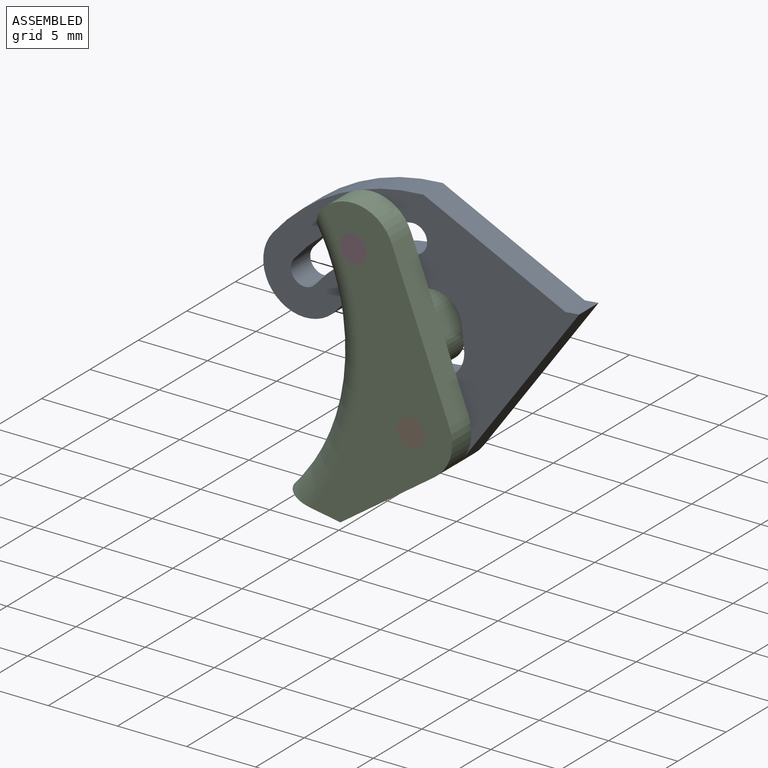
[diagram: assembled view]
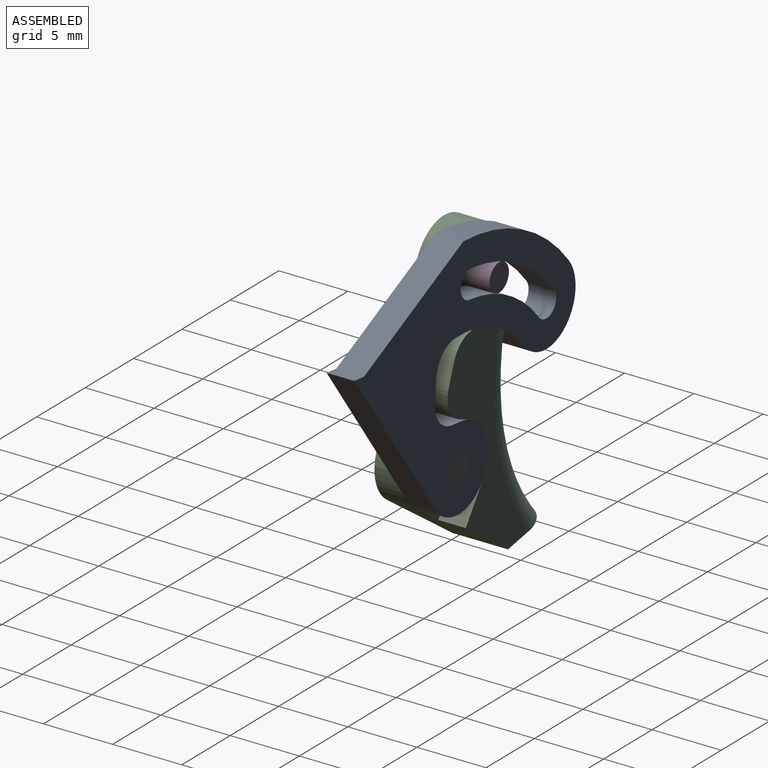
[diagram: assembled view, second angle]
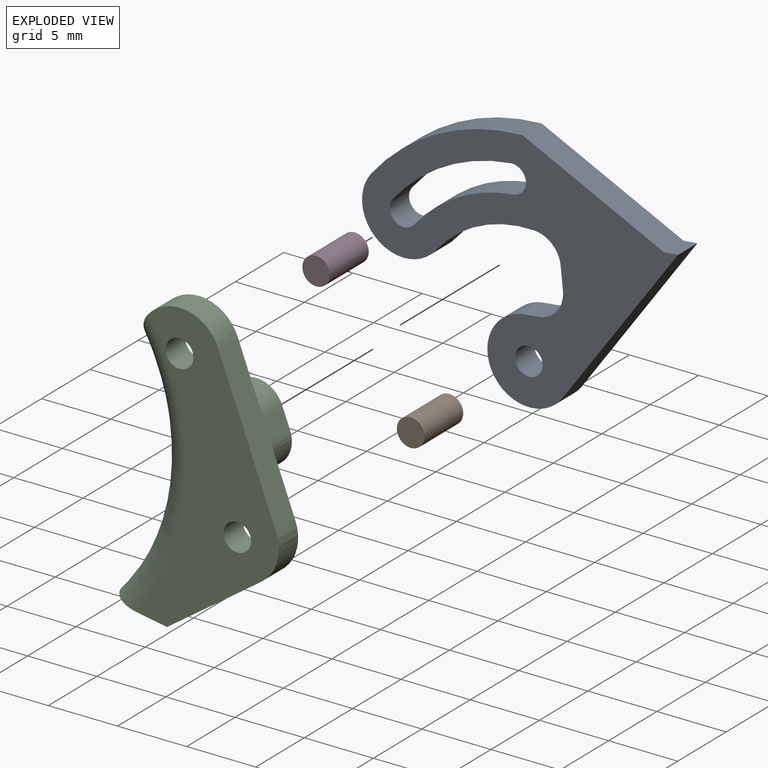
[diagram: exploded view]
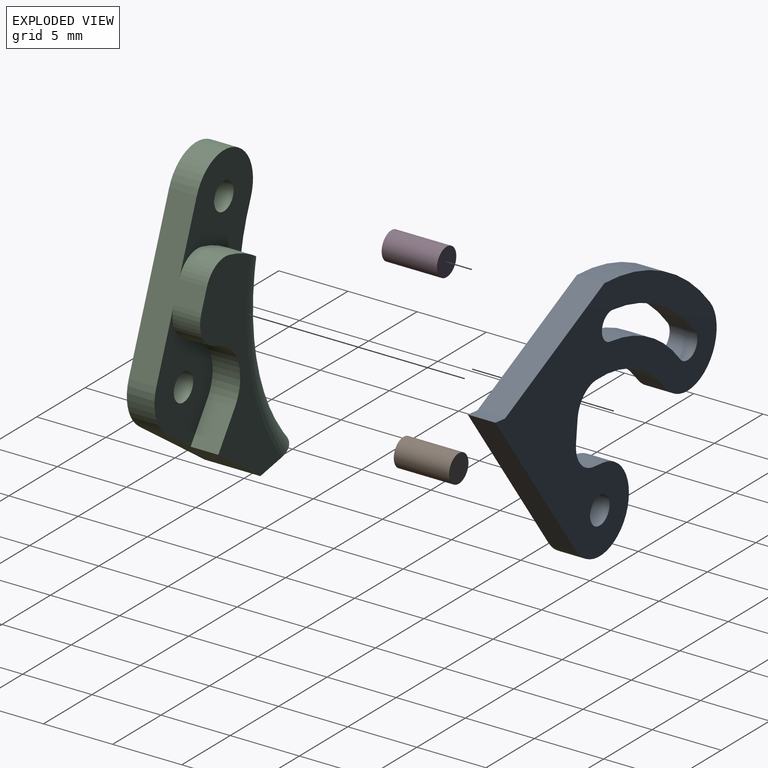
[diagram: exploded view, second angle]
ASSEMBLY  parts=4 mates=3
PART A: 18 faces, bbox 22.5x2x17.7 mm
  f0: cylinder r=1mm len=2mm, axis (0,1,0), area 6.3mm2, adj f1,f13,f14,f15
  f1: cylinder r=10.66mm len=8.07mm, axis (0,1,0), area 16.7mm2, adj f0,f2,f14,f15
  f2: cylinder r=1mm len=2mm, axis (0,1,0), area 6.3mm2, adj f1,f13,f14,f15
  f3: cylinder r=8.66mm len=7.8mm, axis (0,1,0), area 16.2mm2, adj f12,f14,f15,f16
  f4: plane 2x1.54mm, normal (-0.97,0,0.24), area 3.2mm2, adj f14,f15,f16,f17
  f5: plane 2x0.97mm, normal (0.24,0,0.97), area 2mm2, adj f6,f14,f15,f17
  f6: cylinder r=3mm len=6mm, axis (0,1,0), area 23.9mm2, adj f5,f7,f14,f15
  f7: plane 11.81x8.03mm, normal (0.56,0,-0.83), area 28.6mm2, adj f6,f8,f14,f15
  f8: plane 2x0.97mm, normal (0.24,0,0.97), area 2mm2, adj f7,f9,f14,f15
  f9: plane 8.14x7.96mm, normal (0.71,0,0.7), area 22.8mm2, adj f8,f10,f14,f15
  f10: cylinder r=14.66mm len=12.11mm, axis (0,1,0), area 25.1mm2, adj f9,f12,f14,f15
  f11: cylinder r=1mm len=2mm, axis (0,1,0), area 12.6mm2, adj f14,f15
  f12: cylinder r=3mm len=5.57mm, axis (0,1,0), area 18.8mm2, adj f3,f10,f14,f15
  f13: cylinder r=12.66mm len=9.59mm, axis (0,1,0), area 19.9mm2, adj f0,f2,f14,f15
  f14: plane 22.5x17.66mm, normal (0,-1,0), area 154.8mm2, adj f0,f1,f2,f3,f4,f5,f6,f7
  f15: plane 22.5x17.66mm, normal (0,1,0), area 154.8mm2, adj f0,f1,f2,f3,f4,f5,f6,f7
  f16: cylinder r=2mm len=2.33mm, axis (0,1,0), area 5.7mm2, adj f3,f4,f14,f15
  f17: cylinder r=2mm len=2.43mm, axis (0,1,0), area 6.3mm2, adj f4,f5,f14,f15
PART B: 3 faces, bbox 2x4x2 mm
  f0: cylinder r=1mm len=4mm, axis (0,1,0), area 25.1mm2, adj f1,f2
  f1: plane 2x2mm, normal (0,-1,0), area 3.1mm2, adj f0
  f2: plane 2x2mm, normal (0,1,0), area 3.1mm2, adj f0
PART C: 18 faces, bbox 13x4x24.2 mm
  f0: plane 10x6mm, normal (0.86,0,0.51), area 26.5mm2, adj f3,f6,f7,f8,f12,f14,f15,f16
  f1: cylinder r=1mm len=2mm, axis (0,1,0), area 12.6mm2, adj f8,f14
  f2: cylinder r=1mm len=2mm, axis (0,1,0), area 12.6mm2, adj f8,f12
  f3: plane 16.16x6.26mm, normal (0,1,0), area 49.4mm2, adj f0,f4,f5,f9,f10,f11,f13,f15
  f4: plane 4.53x4mm, normal (0,0,-1), area 16.1mm2, adj f3,f5,f8,f17
  f5: plane 5.88x5.87mm, normal (0.71,0,-0.71), area 27.2mm2, adj f3,f4,f6,f8,f11,f12
  f6: cylinder r=3mm len=3.66mm, axis (0,1,0), area 8mm2, adj f0,f5,f8,f12
  f7: cylinder r=3mm len=5.57mm, axis (0,1,0), area 16.6mm2, adj f0,f8,f14,f17
  f8: plane 21x11.53mm, normal (0,-1,0), area 99.6mm2, adj f0,f1,f2,f4,f5,f6,f7,f17
  f9: cylinder r=3mm len=4.7mm, axis (0,1,0), area 10.9mm2, adj f3,f10,f11,f12
  f10: plane 2x0.86mm, normal (0.51,0,-0.86), area 2mm2, adj f3,f9,f12,f15
  f11: plane 2.12x2.12mm, normal (0.71,0,0.71), area 6mm2, adj f3,f5,f9,f12
  f12: plane 10.07x6mm, normal (0,1,0), area 29.9mm2, adj f0,f2,f5,f6,f9,f10,f11,f15
  f13: cylinder r=8.66mm len=3.63mm, axis (0,1,0), area 8.3mm2, adj f3,f14,f16,f17
  f14: plane 8.18x7.79mm, normal (0,1,0), area 30.7mm2, adj f0,f1,f7,f13,f16,f17
  f15: cylinder r=2mm len=2.74mm, axis (0,-1,0), area 6.3mm2, adj f0,f3,f10,f12
  f16: cylinder r=2mm len=2.48mm, axis (0,1,0), area 5.7mm2, adj f0,f3,f13,f14
  f17: torus R=17.17mm, axis (0,-1,0), area 105.4mm2, adj f3,f4,f7,f8,f13,f14
PART D: same geometry as B
PLACE A rot(axis=(0,-1,0),20deg) t=(-8.94,-0.89,0.48)mm
PLACE B rot(axis=(0,1,0),10deg) t=(0.12,-0.89,-6.86)mm
PLACE C rot(axis=(0,1,0),10deg) t=(-4.06,-0.89,4.03)mm
PLACE D t=(-4.06,-0.89,4.03)mm fixed
MATE revolute B.f0 <-> A.f1  axis (0,1,0) through (0.12,-0.89,-6.86)mm
MATE revolute D.f0 <-> C.f1  axis (0,-1,0) through (-4.06,-4.89,4.03)mm
MATE fastened B.f0 <-> C.f2  axis (0,-1,0) through (0.12,-4.89,-6.86)mm
